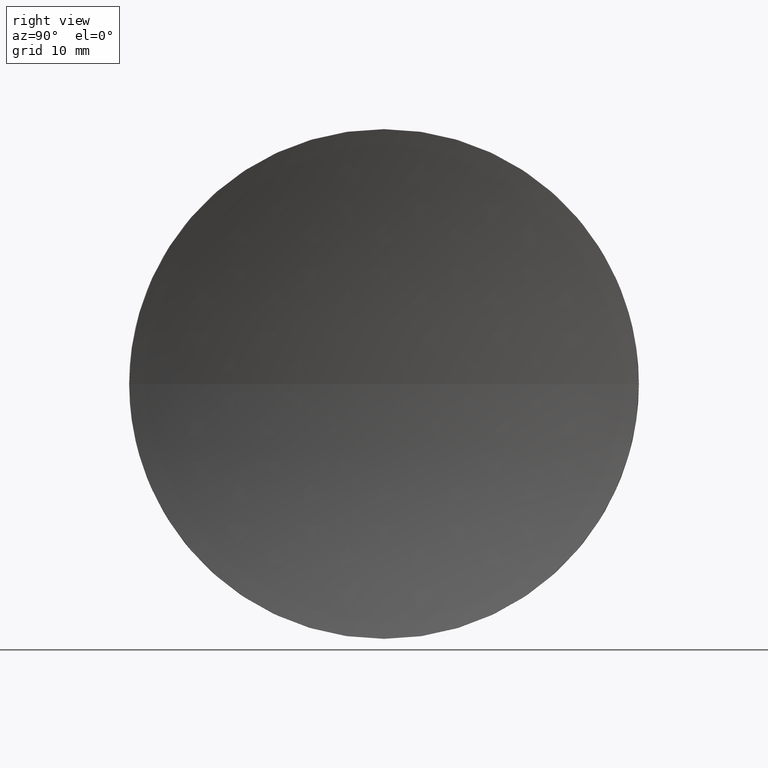
[diagram: clean part render]
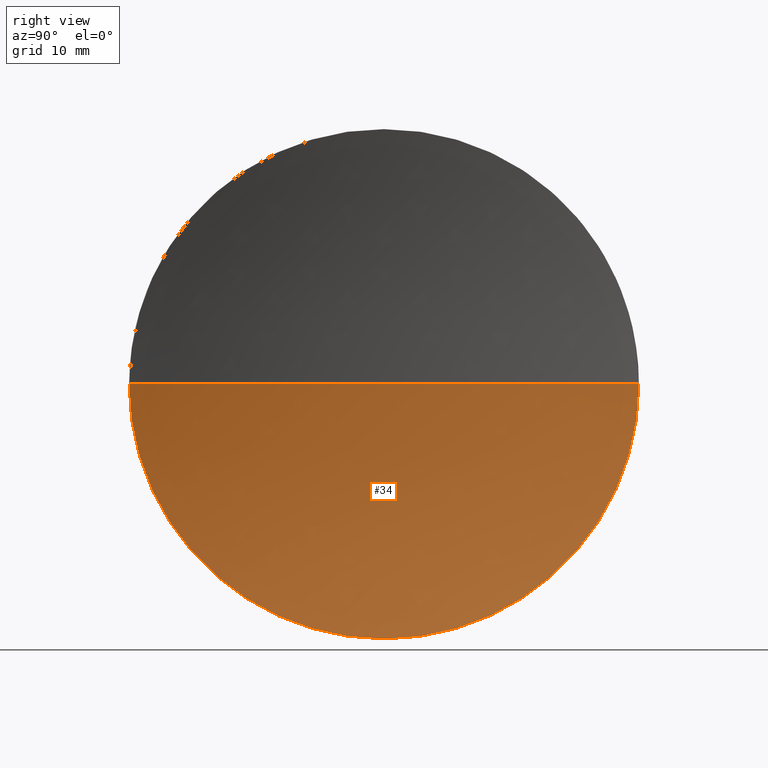
[diagram: same view with one face highlighted and labeled with its STEP entity id]
A machine part, right view. The second image highlights one B-rep face of the part: STEP entity #34.
In plain terms, the highlighted spherical surface has radius 100 mm.
Its self-contained STEP definition (entity closure, byte-faithful):
#2 = AXIS2_PLACEMENT_3D ( 'NONE', #14, #115, #178 ) ;
#6 = EDGE_CURVE ( 'NONE', #117, #123, #87, .T. ) ;
#7 = CARTESIAN_POINT ( 'NONE',  ( 339.1853110698390300, 138.7560422467447600, 0.0000000000000000000 ) ) ;
#8 = CIRCLE ( 'NONE', #185, 24.99999999999999300 ) ;
#14 = CARTESIAN_POINT ( 'NONE',  ( 339.1853110698390300, 138.7560422467447600, 0.0000000000000000000 ) ) ;
#25 = VERTEX_POINT ( 'NONE', #51 ) ;
#26 = CARTESIAN_POINT ( 'NONE',  ( 242.3607274146536400, 138.7560422467448700, 0.0000000000000000000 ) ) ;
#27 = CARTESIAN_POINT ( 'NONE',  ( 242.3607274146536400, 138.7560422467448700, 0.0000000000000000000 ) ) ;
#32 = AXIS2_PLACEMENT_3D ( 'NONE', #150, #81, #109 ) ;
#33 = DIRECTION ( 'NONE',  ( 0.0000000000000000000, 1.224646799147353200E-016, -1.000000000000000000 ) ) ;
#34 = ADVANCED_FACE ( 'NONE', ( #134 ), #45, .F. ) ;
#38 = DIRECTION ( 'NONE',  ( 0.0000000000000000000, 0.0000000000000000000, 1.000000000000000000 ) ) ;
#39 = VERTEX_POINT ( 'NONE', #94 ) ;
#42 = EDGE_CURVE ( 'NONE', #39, #25, #157, .T. ) ;
#45 = SPHERICAL_SURFACE ( 'NONE', #32, 99.99999999999997200 ) ;
#49 = EDGE_LOOP ( 'NONE', ( #174, #181, #148, #77 ) ) ;
#51 = CARTESIAN_POINT ( 'NONE',  ( 239.1853110698390300, 138.7560422467447600, 0.0000000000000000000 ) ) ;
#65 = DIRECTION ( 'NONE',  ( 0.0000000000000000000, 0.0000000000000000000, 1.000000000000000000 ) ) ;
#67 = DIRECTION ( 'NONE',  ( -1.000000000000000000, -0.0000000000000000000, -0.0000000000000000000 ) ) ;
#69 = EDGE_CURVE ( 'NONE', #123, #39, #8, .T. ) ;
#74 = AXIS2_PLACEMENT_3D ( 'NONE', #26, #67, #65 ) ;
#77 = ORIENTED_EDGE ( 'NONE', *, *, #88, .T. ) ;
#79 = CIRCLE ( 'NONE', #2, 99.99999999999997200 ) ;
#81 = DIRECTION ( 'NONE',  ( 0.0000000000000000000, 0.0000000000000000000, -1.000000000000000000 ) ) ;
#87 = CIRCLE ( 'NONE', #74, 24.99999999999999300 ) ;
#88 = EDGE_CURVE ( 'NONE', #117, #25, #79, .T. ) ;
#94 = CARTESIAN_POINT ( 'NONE',  ( 242.3607274146536400, 113.7560422467447700, -3.061616997868382300E-015 ) ) ;
#99 = CARTESIAN_POINT ( 'NONE',  ( 242.3607274146536400, 138.7560422467448700, -24.99999999999999300 ) ) ;
#109 = DIRECTION ( 'NONE',  ( 0.0000000000000000000, 1.000000000000000000, 0.0000000000000000000 ) ) ;
#115 = DIRECTION ( 'NONE',  ( 0.0000000000000000000, 0.0000000000000000000, 1.000000000000000000 ) ) ;
#117 = VERTEX_POINT ( 'NONE', #142 ) ;
#123 = VERTEX_POINT ( 'NONE', #99 ) ;
#134 = FACE_OUTER_BOUND ( 'NONE', #49, .T. ) ;
#137 = DIRECTION ( 'NONE',  ( 0.0000000000000000000, 1.000000000000000000, 1.224646799147353200E-016 ) ) ;
#140 = AXIS2_PLACEMENT_3D ( 'NONE', #7, #33, #137 ) ;
#142 = CARTESIAN_POINT ( 'NONE',  ( 242.3607274146536400, 163.7560422467448700, 0.0000000000000000000 ) ) ;
#148 = ORIENTED_EDGE ( 'NONE', *, *, #6, .F. ) ;
#150 = CARTESIAN_POINT ( 'NONE',  ( 339.1853110698390300, 138.7560422467447600, 0.0000000000000000000 ) ) ;
#151 = DIRECTION ( 'NONE',  ( -1.000000000000000000, -0.0000000000000000000, -0.0000000000000000000 ) ) ;
#157 = CIRCLE ( 'NONE', #140, 99.99999999999997200 ) ;
#174 = ORIENTED_EDGE ( 'NONE', *, *, #42, .F. ) ;
#178 = DIRECTION ( 'NONE',  ( 1.000000000000000000, 0.0000000000000000000, 0.0000000000000000000 ) ) ;
#181 = ORIENTED_EDGE ( 'NONE', *, *, #69, .F. ) ;
#185 = AXIS2_PLACEMENT_3D ( 'NONE', #27, #151, #38 ) ;